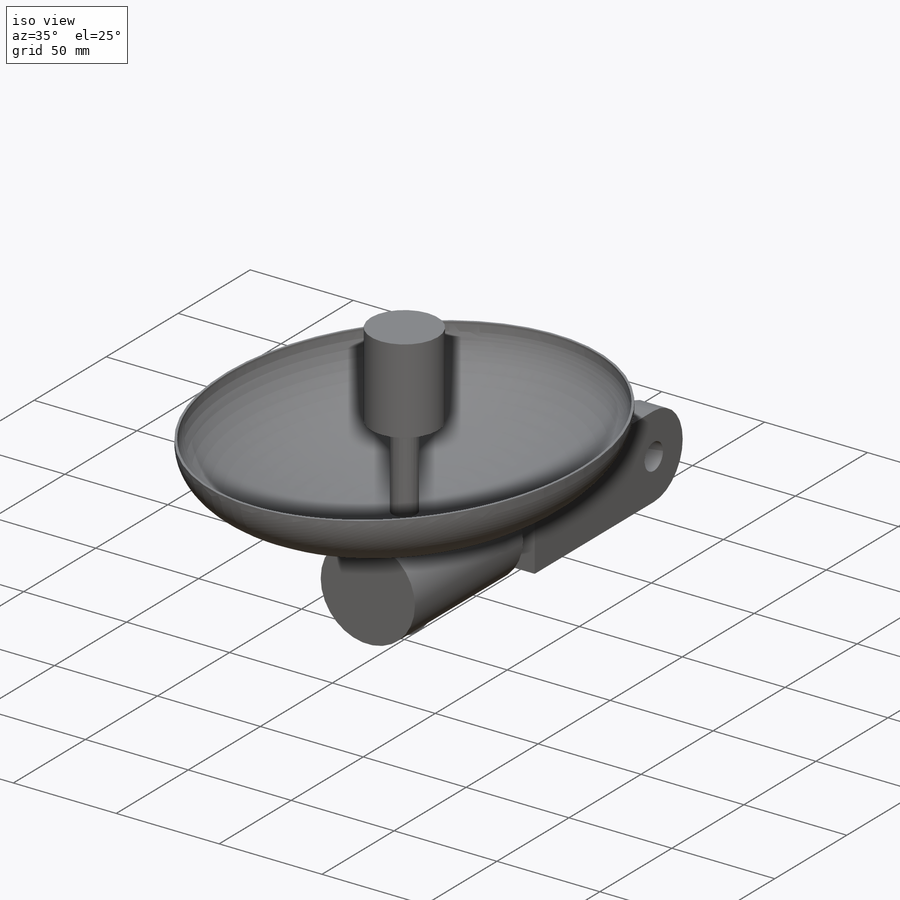
[diagram: iso view]
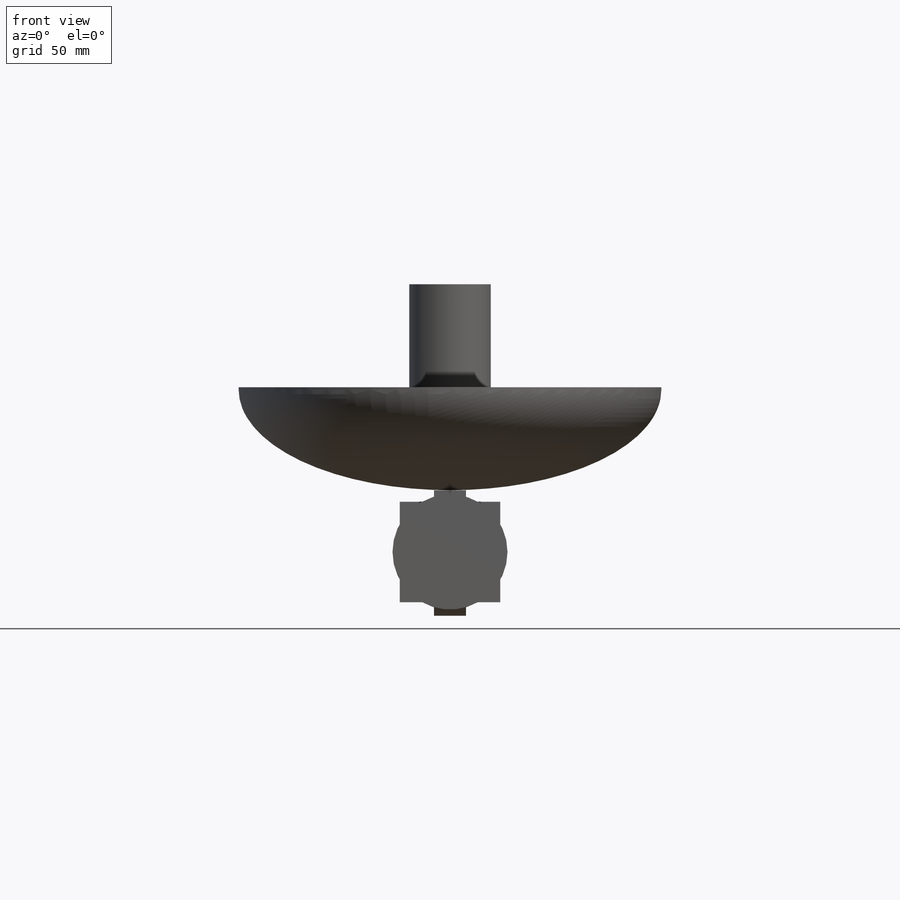
[diagram: front view]
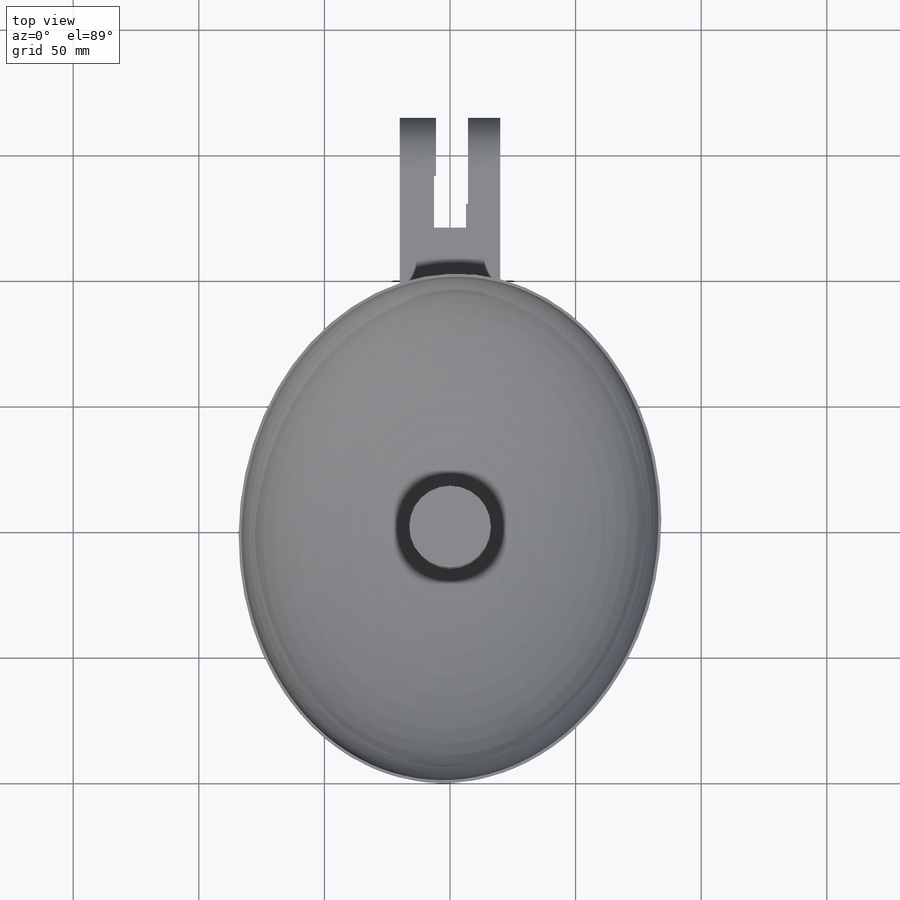
[diagram: top view]
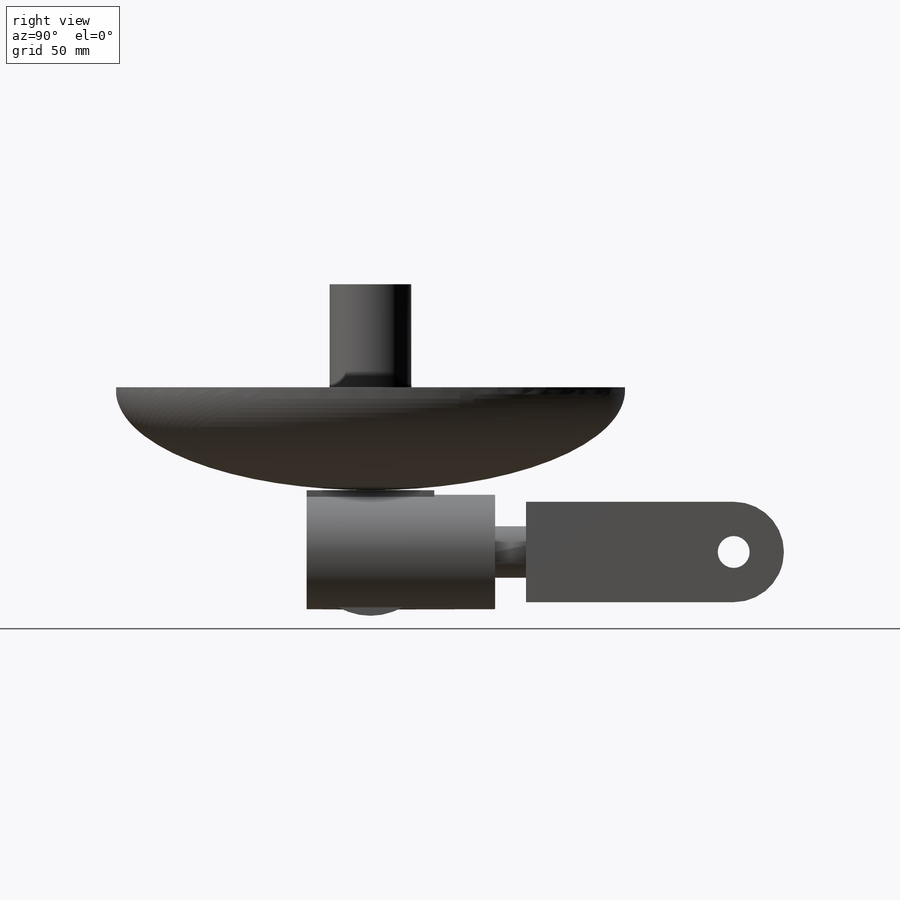
[diagram: right view]
SOLIDWORKS PART (.sldprt)
format: sldprt  version: not decoded by parser v0  size: 385,536 bytes
history: native  units: mm
features: sketch x15, extrude x7, cut_extrude x3, hole x2, fillet x2, material x1, dome x1, shell x1 (+14 scaffold rows collapsed)
feature tree (46):
  scaffold x14  (default folders/planes/origin — collapsed)
  material  "6061 Alloy"
  sketch  "Sketch1"  dims[D1=84.0mm D2=101.5mm]
  extrude  "Extrude2"  Depth=1mm
  dome  "Dome1"
  shell  "Shell1"  Thickness=1.2mm
  sketch  "Sketch2"
  extrude  "Extrude3"  Depth=41mm
  sketch  "Sketch3"
  extrude  "Extrude4"  [1 undecoded]
  sketch  "3DSketch1"  dims[D1=40.0mm]
  sketch  "Sketch4"  dims[D1=12.7mm D2=50.8mm]
  extrude  "Extrude6"  Depth=50mm
  hole  "1/2 (0.5) Diameter Hole1"  Diameter=12.7mm Depth=40mm
  sketch  "3DSketch2"
  sketch  "Sketch5"  dims[hole-wizard template sketch: 47 standard entries collapsed; hole parameters kept: c15.Hole Depth=40.0mm c15.D3=~14.816244mm c15.Drill Angle=118.0deg]
  fillet  "Fillet1"  Radius=25.4mm
  sketch  "Sketch6"
  extrude  "Extrude7"  Depth=75mm
  sketch  "Sketch7"
  extrude  "Extrude8"  Depth=75mm
  sketch  "Sketch8"  dims[D1=40.0mm D2=40.0mm D3=40.0mm]
  extrude  "Extrude9"  Depth=40mm
  fillet  "Fillet2"  Radius=20mm
  sketch  "Sketch9"  dims[D1=12.7mm]
  cut_extrude  "Extrude10"  [1 undecoded]
  hole  "1/2 (0.5) Diameter Hole2"  Diameter=12.7mm Depth=40mm
  sketch  "3DSketch3"
  sketch  "Sketch10"  dims[hole-wizard template sketch: 47 standard entries collapsed; hole parameters kept: c15.Hole Depth=40.0mm c15.D3=~14.816244mm c15.Drill Angle=118.0deg]
  sketch  "Sketch11"  dims[D1=12.7mm]
  cut_extrude  "Extrude11"  [1 undecoded]
  sketch  "Sketch12"
  cut_extrude  "Extrude12"  Depth=12.7mm
decode coverage: 20 of 31 modeling features carry decoded parameters
note: ~ marks probable driven/reference dimensions
note: 3 parameter values undecoded
summary: no parameter record found for 3 features
note: suppression state not decoded; provenance and decode notes live in map.json
